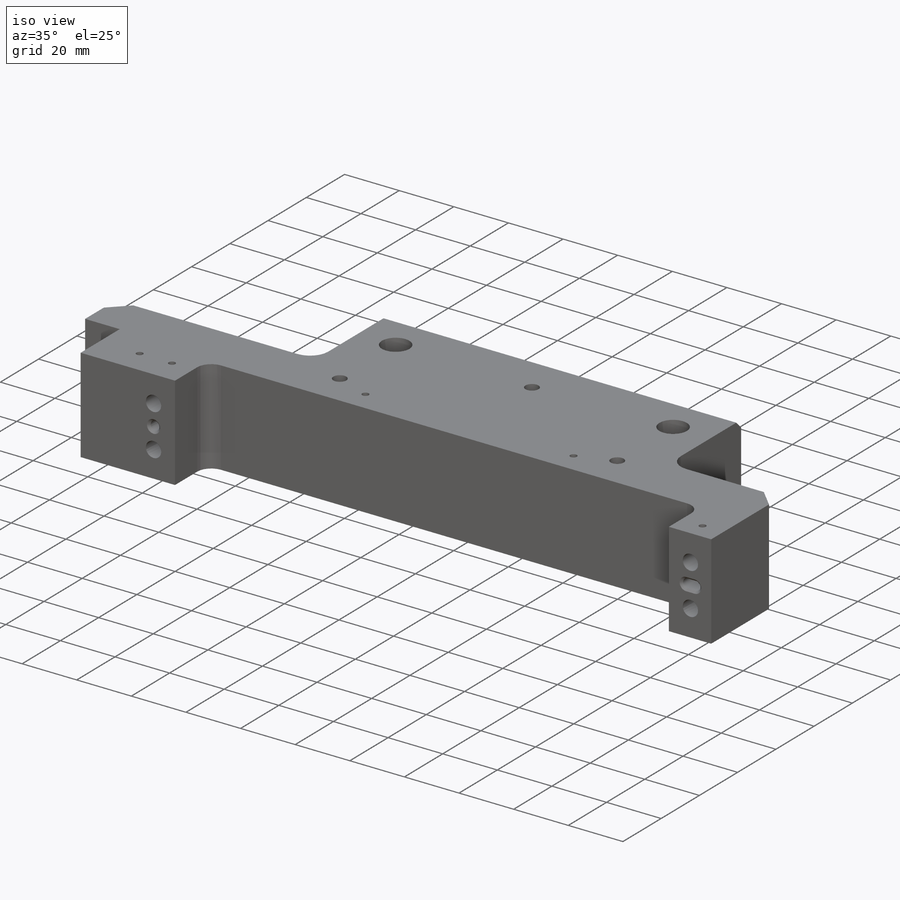
[diagram: iso view]
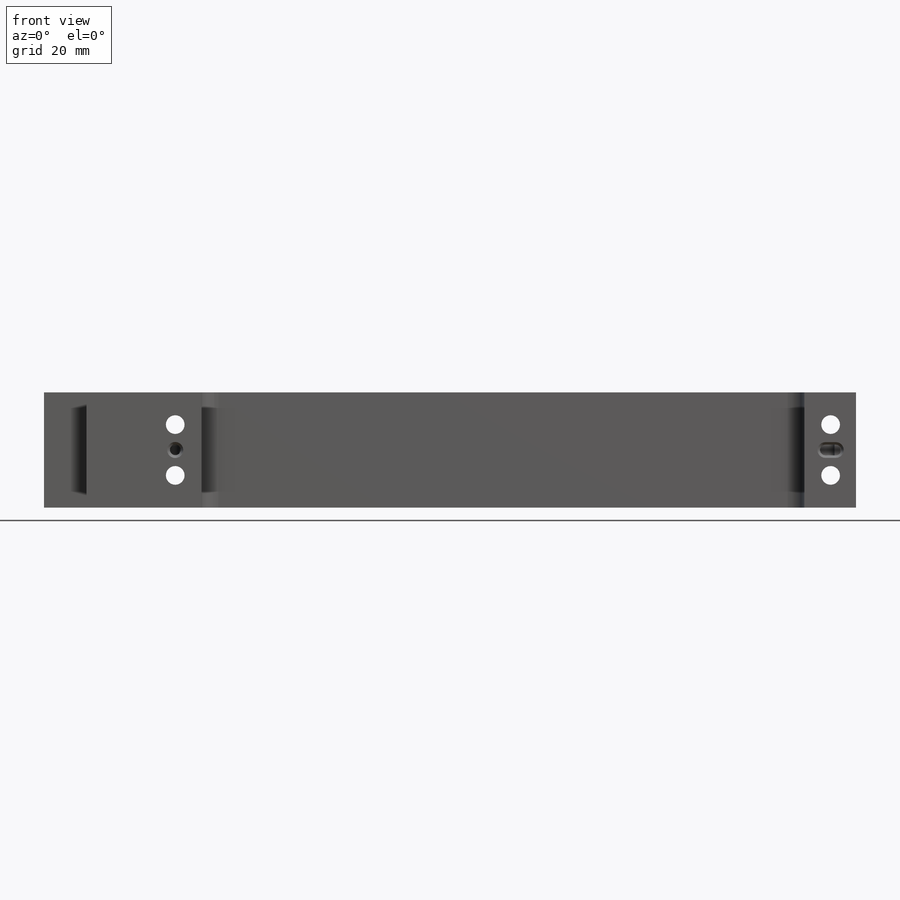
[diagram: front view]
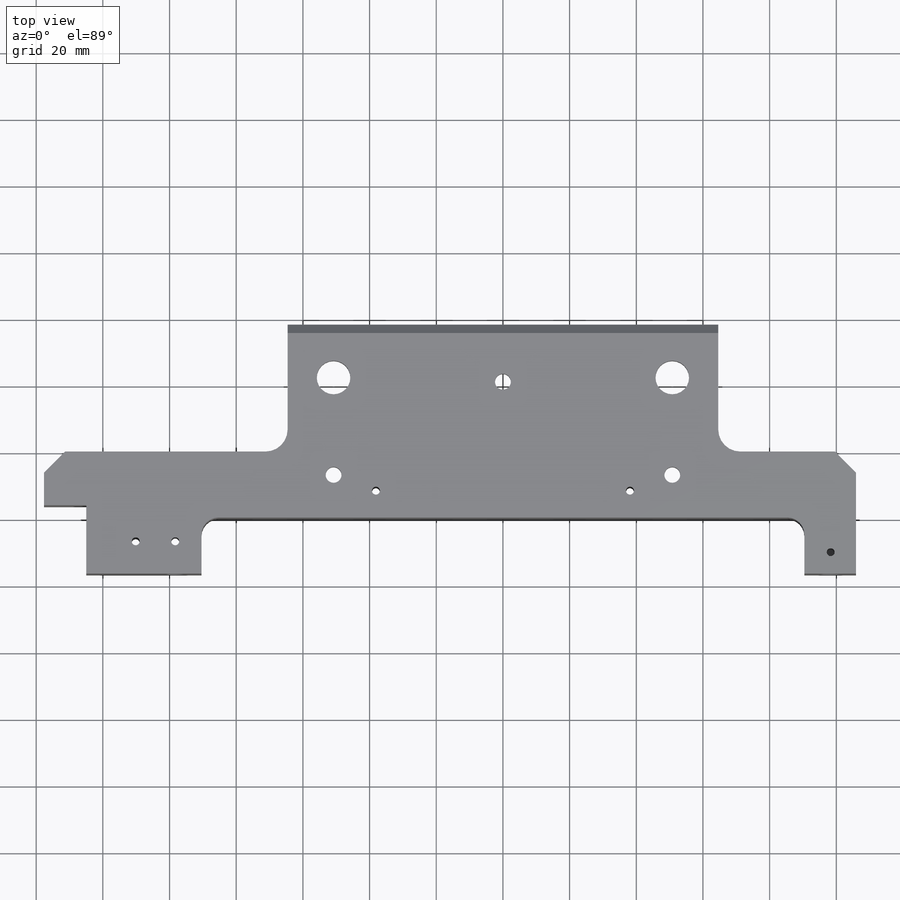
[diagram: top view]
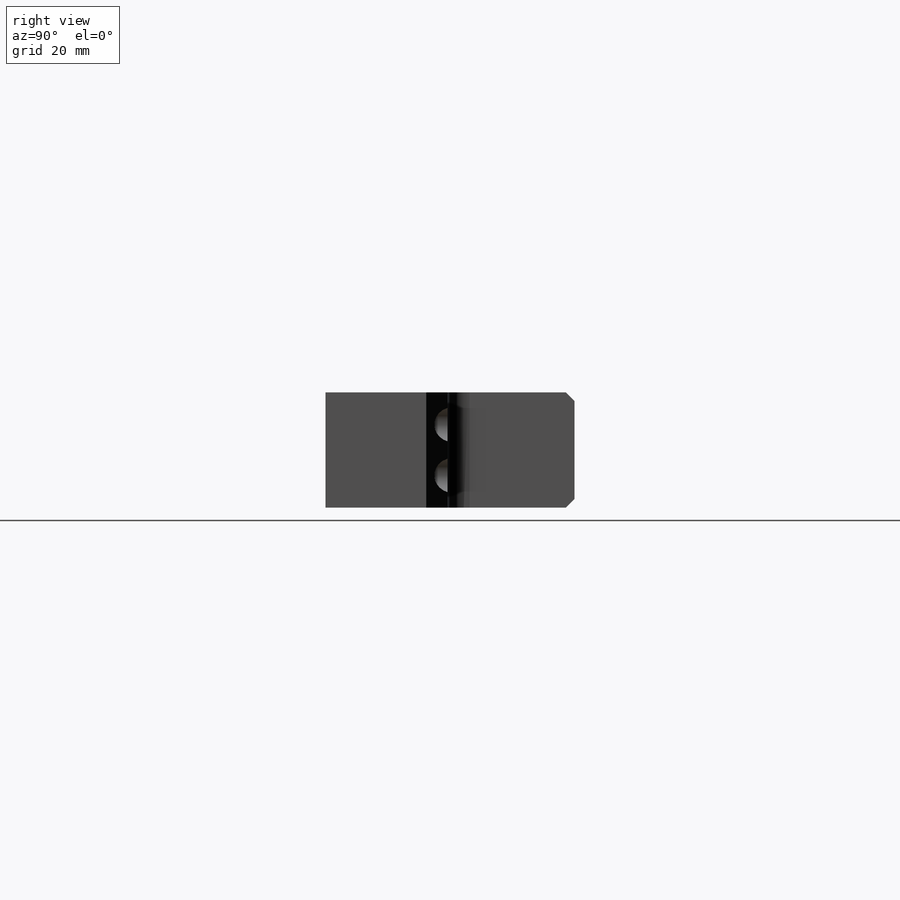
[diagram: right view]
SOLIDWORKS PART (.sldprt)
format: sldprt  version: not decoded by parser v0  size: 1,044,480 bytes
history: native  units: mm
features: sketch x28, extrude x17, hole x11, plane x3, chamfer x3, fillet x2, material x1, cut_extrude x1 (+11 scaffold rows collapsed)
feature tree (77):
  scaffold x11  (default folders/planes/origin — collapsed)
  material  "6061-T6 Al"
  plane  "XY"
  plane  "XZ"
  plane  "YZ"
  sketch  "Sketch1"  dims[D1=34.544mm D2=211.836mm]
  extrude  "Extrude1"  Depth=19.812mm
  sketch  "Sketch2"  dims[c1.D1=12.7mm c1.D2=182.88mm c1.D3=182.88mm c2.D2=182.88mm c2.D3=182.88mm c3.D2=182.88mm c3.D1=180.848mm]
  extrude  "Extrude2"  Depth=16.764mm
  sketch  "Sketch6"  dims[D1=129.1844mm]
  extrude  "Extrude4"  Depth=38.1mm
  sketch  "Sketch73"  dims[D1=0.0mm]
  extrude  "Extrude5"  Depth=19.05mm ID=164619364
  extrude  "ID"  [1 undecoded]
  sketch  "Sketch91"  dims[D1=16.129mm]
  extrude  "Extrude6"  Depth=12.7mm
  hole  "CBORE for #10 Socket Head Cap Screw1"  Diameter=5.6134mm Depth=36.576025mm
  sketch  "Sketch46"  dims[D1=196.596mm D2=15.24mm]
  sketch  "Sketch45"  dims[hole-wizard template sketch: 42 standard entries collapsed; hole parameters kept: c12.Thru Hole Depth=~36.576025mm c12.C'Bore Dia.=~10.31748mm c12.C'Bore Depth=6.731mm]
  sketch  "Sketch21"  dims[c1.D1=3.1877mm c1.D2=3.175mm c2.D1=~3.19024mm]
  cut_extrude  "Cut-Extrude15"  Depth=6.35mm
  hole  "1/8 (0.125) Diameter Hole4"  Diameter=3.19024mm Depth=9.652mm
  sketch  "Sketch56"
  sketch  "Sketch55"  dims[hole-wizard template sketch: 40 standard entries collapsed; hole parameters kept: c13.Hole Depth=9.652mm c13.Near C'Sink Dia.=4.826mm c13.D4=~33.297463mm c13.Near C'Sink Angle=90.0deg c14.D5=~14.816244mm c14.Drill Angle=118.0deg]
  extrude  "faceID"  Depth=0 cosFaceIDTag=0
  extrude  "faceID"  [1 undecoded]
  extrude  "faceID"  [1 undecoded]
  extrude  "faceID"  [1 undecoded]
  extrude  "faceID"  [1 undecoded]
  extrude  "faceID"  [1 undecoded]
  extrude  "faceID"  [1 undecoded]
  extrude  "faceID"  [1 undecoded]
  extrude  "faceID"  [1 undecoded]
  extrude  "faceID"  [1 undecoded]
  extrude  "faceID"  [1 undecoded]
  hole  "Tapped Hole for 1/4-20 Helicoil1"  Diameter=6.9088mm Depth=23.9014mm
  sketch  "Sketch35"  dims[c1.D1=12.827mm c1.D2=25.4mm c1.D3=101.6mm c1.D4=50.8mm c1.D5=6.985mm c2.D1=27.94mm]
  sketch  "Sketch34"  dims[hole-wizard template sketch: 28 standard entries collapsed; hole parameters kept: c8.Tap Drill Dia.=6.9088mm c8.Tap Drill Depth=23.9014mm c8.Thread Major Dia.=~8.09498mm c8.Thread Depth=15.7226mm c8.D5=~14.816244mm c8.Drill Angle=118.0deg]
  hole  "3/16 (0.1875) Diameter Hole1"  Diameter=4.7625mm Depth=34.54405mm
  sketch  "Sketch39"
  sketch  "Sketch38"  dims[hole-wizard template sketch: 60 standard entries collapsed; hole parameters kept: c18.Thru Hole Depth=~34.54405mm]
  hole  "Tapped Hole for 1/4-20 Helicoil2"  Diameter=6.7564mm Depth=14.8082mm
  sketch  "Sketch75"  dims[D1=19.05mm D2=26.3525mm D3=9.652mm]
  sketch  "Sketch74"  dims[hole-wizard template sketch: 27 standard entries collapsed; hole parameters kept: c8.Tap Drill Depth=14.8082mm c8.Thread Major Dia.=~8.09498mm c8.Thread Depth=11.6586mm c8.Near C'Sink Dia.=8.89mm c8.D6=~4.399409mm c8.Near C'Sink Angle=90.0deg c8.D7=~14.816244mm c8.Drill Angle=118.0deg]
  hole  "3/32 (0.09375) Diameter Hole2"  Diameter=2.38125mm Depth=22.86mm
  sketch  "Sketch94"
  sketch  "Sketch93"  dims[hole-wizard template sketch: 47 standard entries collapsed; hole parameters kept: c15.Hole Depth=22.86mm c15.D3=~14.816244mm c15.Drill Angle=118.0deg]
  hole  " (0.09375) Diameter Hole2"  Diameter=2.38125mm Depth=34.54405mm
  sketch  "Sketch77"  dims[D1=9.525mm D2=3.81mm]
  sketch  "Sketch76"  dims[hole-wizard template sketch: 60 standard entries collapsed; hole parameters kept: c18.Thru Hole Depth=~34.54405mm]
  hole  "Tapped Hole for #10-32 Helicoil1"  Diameter=5.1054mm Depth=10.5664mm
  sketch  "Sketch83"  dims[c1.D1=7.874mm c1.D2=7.874mm c1.D3=11.43mm c1.D4=13.97mm c2.D1=98.298mm c2.D2=98.298mm c2.D4=13.97mm]
  sketch  "Sketch82"  dims[hole-wizard template sketch: 27 standard entries collapsed; hole parameters kept: c8.Tap Drill Depth=10.5664mm c8.Thread Major Dia.=~5.93598mm c8.Thread Depth=8.5598mm c8.Near C'Sink Dia.=~7.20598mm c8.D6=~4.399409mm c8.Near C'Sink Angle=90.0deg c8.D7=~14.816244mm c8.Drill Angle=118.0deg]
  hole  "Tapped Hole for 3/8-16 Helicoil3"  Diameter=10.0838mm Depth=34.544mm
  sketch  "Sketch85"  dims[D1=22.225mm D2=50.8mm D3=50.8mm]
  sketch  "Sketch84"  dims[hole-wizard template sketch: 27 standard entries collapsed; hole parameters kept: c8.Tap Drill Depth=34.544mm c8.Thread Major Dia.=~11.68908mm c8.Thread Depth=22.86mm c8.Near C'Sink Dia.=12.7mm c8.D6=~4.399409mm c8.Near C'Sink Angle=90.0deg c8.D7=~14.816244mm c8.Drill Angle=118.0deg]
  hole  "CBORE for #4 Socket Head Cap Screw1"  Diameter=3.175mm Depth=6.35mm
  sketch  "Sketch87"  dims[D1=76.2mm D2=24.8412mm]
  sketch  "Sketch88"  dims[hole-wizard template sketch: 35 standard entries collapsed; hole parameters above]
  hole  "3/32 (0.09375) Diameter Hole1"  Diameter=2.38125mm Depth=34.54405mm
  sketch  "Sketch90"
  sketch  "Sketch89"  dims[hole-wizard template sketch: 60 standard entries collapsed; hole parameters kept: c18.Thru Hole Depth=~34.54405mm]
  chamfer  "Chamfer1"  Distance=2.54mm Angle=45deg
  fillet  "Fillet1"  Radius=6.604mm
  fillet  "Fillet2"  Radius=5.08mm
  chamfer  "Chamfer4"  Distance=0.762mm Angle=45deg
  chamfer  "Chamfer5"  Distance=6.35mm Angle=45deg
decode coverage: 47 of 62 modeling features carry decoded parameters
note: ~ marks probable driven/reference dimensions
note: 11 parameter values undecoded
summary: no parameter record found for 11 features; Diameter pulled from absorbed wizard sketch
note: suppression state not decoded; provenance and decode notes live in map.json
